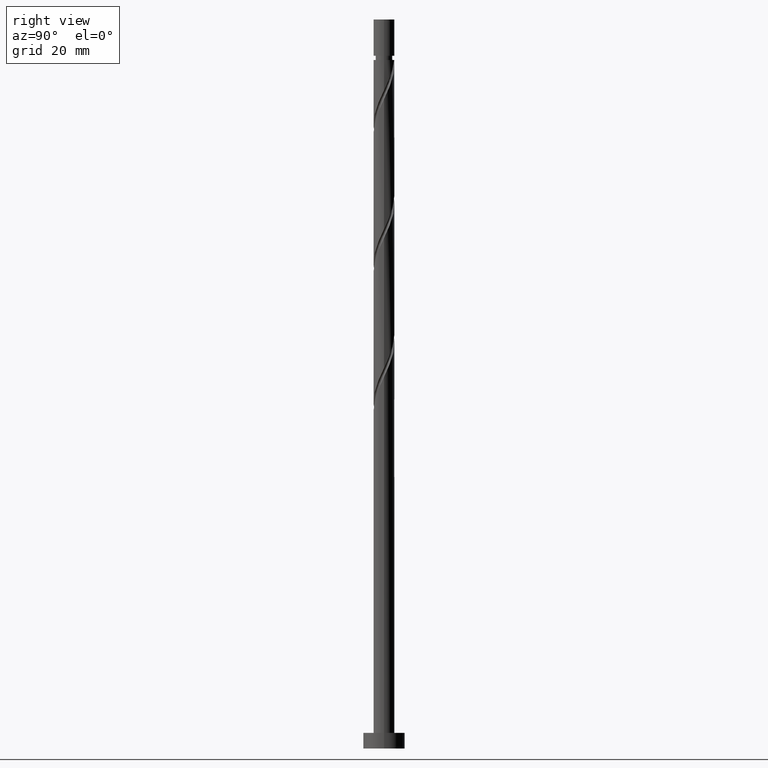
[diagram: clean part render]
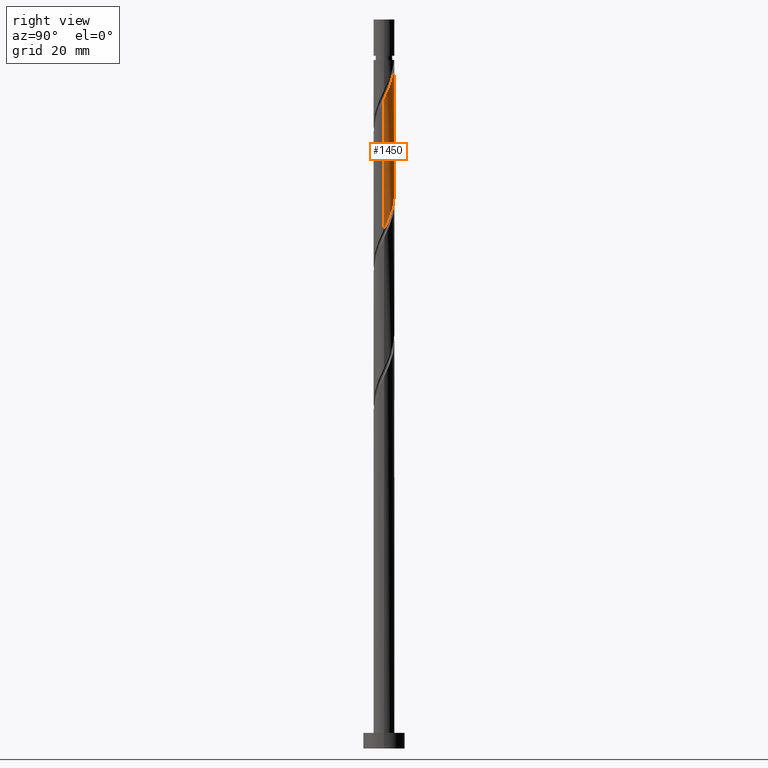
[diagram: same view with one face highlighted and labeled with its STEP entity id]
A machine part, right view. The second image highlights one B-rep face of the part: STEP entity #1450.
In plain terms, the highlighted cylindrical surface (edge-blend (fillet) strip) has radius 2 mm, axis along (-0, -0, -1).
Its self-contained STEP definition (entity closure, byte-faithful):
#6 = AXIS2_PLACEMENT_3D ( 'NONE', #868, #875, #1384 ) ;
#42 = CARTESIAN_POINT ( 'NONE',  ( 0.1161895186125009721, 2.017223038501448240, 106.1635115186231815 ) ) ;
#64 = CARTESIAN_POINT ( 'NONE',  ( 0.9340691933046023632, 1.768478086411954919, 104.3453297004413542 ) ) ;
#70 = CARTESIAN_POINT ( 'NONE',  ( 1.220637884402355322, 1.584311571365226046, 128.5877539428655894 ) ) ;
#72 = CARTESIAN_POINT ( 'NONE',  ( -1.220637884402353768, 1.584311571365224047, 109.1938145489261984 ) ) ;
#145 = CARTESIAN_POINT ( 'NONE',  ( -0.3979949748426484524, 1.960000000000001297, 132.2241175792291870 ) ) ;
#147 = EDGE_CURVE ( 'NONE', #593, #902, #765, .T. ) ;
#153 = DIRECTION ( 'NONE',  ( -1.000000000000000000, 0.000000000000000000, 0.000000000000000000 ) ) ;
#181 = CARTESIAN_POINT ( 'NONE',  ( 0.3979949748426491185, 1.960000000000000409, 105.5574509125625724 ) ) ;
#189 = CARTESIAN_POINT ( 'NONE',  ( 1.786663747202085206, 0.9436744384215546289, 126.7695721246837905 ) ) ;
#216 = VERTEX_POINT ( 'NONE', #572 ) ;
#221 = CARTESIAN_POINT ( 'NONE',  ( -2.000000000000000000, 0.000000000000000000, 140.0000000000000000 ) ) ;
#301 = ORIENTED_EDGE ( 'NONE', *, *, #1130, .F. ) ;
#314 = CARTESIAN_POINT ( 'NONE',  ( -1.448427499289741238, 1.408810338760220660, 109.7998751549867933 ) ) ;
#324 = CARTESIAN_POINT ( 'NONE',  ( 1.996690616564942733, 0.1150068768444769546, 124.9513903065019775 ) ) ;
#325 = CARTESIAN_POINT ( 'NONE',  ( 1.600603406160405084, 1.233189980288572851, 102.5271478822595554 ) ) ;
#338 = CARTESIAN_POINT ( 'NONE',  ( 0.9928482695149680737, 1.759812803970230322, 129.1938145489262411 ) ) ;
#362 = VECTOR ( 'NONE', #1219, 1000.000000000000000 ) ;
#393 = AXIS2_PLACEMENT_3D ( 'NONE', #790, #776, #153 ) ;
#413 = FACE_OUTER_BOUND ( 'NONE', #1280, .T. ) ;
#429 = CARTESIAN_POINT ( 'NONE',  ( -1.996690616564940512, 0.1150068768444774819, 112.8301781852898387 ) ) ;
#435 = ORIENTED_EDGE ( 'NONE', *, *, #147, .F. ) ;
#447 = CARTESIAN_POINT ( 'NONE',  ( -0.7248413235775359453, 1.864029252891264754, 107.9816933368049945 ) ) ;
#497 = CIRCLE ( 'NONE', #6, 1.999999999999996669 ) ;
#537 = CYLINDRICAL_SURFACE ( 'NONE', #393, 2.000000000000000000 ) ;
#567 = CARTESIAN_POINT ( 'NONE',  ( 1.448427499289744569, 1.408810338760221770, 127.9816933368050087 ) ) ;
#572 = CARTESIAN_POINT ( 'NONE',  ( 2.000000000000002665, -1.054455859596495612E-15, 124.7079964332616981 ) ) ;
#578 = CARTESIAN_POINT ( 'NONE',  ( 2.000000000000000888, 2.901623216478314900E-15, 99.74023872519683209 ) ) ;
#579 = CARTESIAN_POINT ( 'NONE',  ( 1.883197487972272377, 0.7322950311120127731, 101.3150266701383231 ) ) ;
#584 = CARTESIAN_POINT ( 'NONE',  ( 0.4568343776401061485, 1.968245701812304072, 130.4059357610474308 ) ) ;
#592 = CARTESIAN_POINT ( 'NONE',  ( 1.617545623245913999, 1.176242388590888144, 127.3756327307443854 ) ) ;
#593 = VERTEX_POINT ( 'NONE', #788 ) ;
#700 = CARTESIAN_POINT ( 'NONE',  ( -1.617545623245911779, 1.176242388590887478, 110.4059357610474308 ) ) ;
#711 = CARTESIAN_POINT ( 'NONE',  ( 0.6798004310727968624, 1.902776961498552133, 104.9513903065019917 ) ) ;
#724 = CARTESIAN_POINT ( 'NONE',  ( -1.999999999999996669, 0.000000000000000000, 132.2241175792292438 ) ) ;
#765 =( BOUNDED_CURVE ( )  B_SPLINE_CURVE ( 2, ( #1581, #841, #429, #1458, #1347, #1212, #700, #314, #72, #1449, #447, #1221, #938, #42, #181, #711, #64, #813, #1073, #325, #1326, #579, #824, #1337, #1468 ),
 .UNSPECIFIED., .F., .T. ) 
 B_SPLINE_CURVE_WITH_KNOTS ( ( 3, 2, 2, 2, 2, 2, 2, 2, 2, 2, 2, 2, 3 ),
 ( 0.4295252162417514952, 0.4318181818181818232, 0.4431818181818181768, 0.4545454545454545303, 0.4659090909090908839, 0.4772727272727272929, 0.4886363636363636465, 0.5000000000000000000, 0.5113636363636363535, 0.5227272727272727071, 0.5340909090909090606, 0.5454545454545454142, 0.5545252162417512176 ),
 .UNSPECIFIED. ) 
 CURVE ( )  GEOMETRIC_REPRESENTATION_ITEM ( )  RATIONAL_B_SPLINE_CURVE ( ( 0.9061101570135573491, 0.9072237824201394574, 0.9090909090909168322, 0.8998376744372191816, 0.9090909090909168322, 0.8998376744372191816, 0.9090909090909168322, 0.8998376744372191816, 0.9090909090909168322, 0.8998376744372191816, 0.9090909090909168322, 0.8998376744372191816, 0.9090909090909168322, 0.8998376744372191816, 0.9090909090909168322, 0.8998376744372191816, 0.9090909090909168322, 0.8998376744372191816, 0.9090909090909168322, 0.8998376744372191816, 0.9090909090909168322, 0.8998376744372191816, 0.9090909090909168322, 0.9017048011079967784, 0.9061101570135571270 ) ) 
 REPRESENTATION_ITEM ( '' )  );
#770 = ORIENTED_EDGE ( 'NONE', *, *, #1058, .F. ) ;
#776 = DIRECTION ( 'NONE',  ( -0.000000000000000000, -0.000000000000000000, -1.000000000000000000 ) ) ;
#788 = CARTESIAN_POINT ( 'NONE',  ( -2.000000000000000444, 2.288393567634959354E-15, 113.0735720585301181 ) ) ;
#790 = CARTESIAN_POINT ( 'NONE',  ( 0.000000000000000000, 0.000000000000000000, 140.0000000000000000 ) ) ;
#813 = CARTESIAN_POINT ( 'NONE',  ( 1.188337955536408419, 1.634179211325358372, 103.7392690943808020 ) ) ;
#822 = CARTESIAN_POINT ( 'NONE',  ( 1.980155124014553847, 0.4020876473299556109, 125.5574509125626150 ) ) ;
#824 = CARTESIAN_POINT ( 'NONE',  ( 1.948211798543800555, 0.4521844623765068349, 100.7089660640777140 ) ) ;
#839 = CARTESIAN_POINT ( 'NONE',  ( 2.000000000000003109, 0.05755105304764087520, 124.8300944379799091 ) ) ;
#841 = CARTESIAN_POINT ( 'NONE',  ( -2.000000000000000888, 0.05755105304764918800, 112.9514740538119213 ) ) ;
#847 = CARTESIAN_POINT ( 'NONE',  ( 2.000000000000002665, -1.054455859596495612E-15, 124.7079964332616981 ) ) ;
#868 = CARTESIAN_POINT ( 'NONE',  ( 0.000000000000000000, 0.000000000000000000, 132.2241175792292438 ) ) ;
#875 = DIRECTION ( 'NONE',  ( -0.000000000000000000, -0.000000000000000000, -1.000000000000000000 ) ) ;
#902 = VERTEX_POINT ( 'NONE', #578 ) ;
#938 = CARTESIAN_POINT ( 'NONE',  ( -0.1703224295138020539, 1.992734370156875157, 106.7695721246838190 ) ) ;
#975 =( BOUNDED_CURVE ( )  B_SPLINE_CURVE ( 2, ( #847, #839, #324, #822, #1228, #189, #592, #567, #70, #338, #1361, #584, #1081, #1346, #1099 ),
 .UNSPECIFIED., .F., .F. ) 
 B_SPLINE_CURVE_WITH_KNOTS ( ( 3, 2, 2, 2, 2, 2, 2, 3 ),
 ( 0.6795252162417512176, 0.6818181818181818787, 0.6931818181818181213, 0.7045454545454545858, 0.7159090909090908283, 0.7272727272727271819, 0.7386363636363635354, 0.7499999999999998890 ),
 .UNSPECIFIED. ) 
 CURVE ( )  GEOMETRIC_REPRESENTATION_ITEM ( )  RATIONAL_B_SPLINE_CURVE ( ( 0.9061101570135619010, 0.9072237824201440093, 0.9090909090909216062, 0.8998376744372238445, 0.9090909090909216062, 0.8998376744372238445, 0.9090909090909216062, 0.8998376744372238445, 0.9090909090909216062, 0.8998376744372238445, 0.9090909090909216062, 0.8998376744372238445, 0.9090909090909216062, 0.8998376744372239555, 0.9090909090909214951 ) ) 
 REPRESENTATION_ITEM ( '' )  );
#1007 = VERTEX_POINT ( 'NONE', #724 ) ;
#1035 = DIRECTION ( 'NONE',  ( -0.000000000000000000, -0.000000000000000000, -1.000000000000000000 ) ) ;
#1058 = EDGE_CURVE ( 'NONE', #1007, #593, #1482, .T. ) ;
#1065 = ORIENTED_EDGE ( 'NONE', *, *, #1570, .T. ) ;
#1073 = CARTESIAN_POINT ( 'NONE',  ( 1.394470680848406419, 1.433684595806965500, 103.1332084883201503 ) ) ;
#1081 = CARTESIAN_POINT ( 'NONE',  ( 0.1703224295138026645, 1.992734370156877377, 131.0119963671080257 ) ) ;
#1099 = CARTESIAN_POINT ( 'NONE',  ( -0.3979949748426484524, 1.960000000000001297, 132.2241175792291870 ) ) ;
#1130 = EDGE_CURVE ( 'NONE', #216, #1517, #975, .T. ) ;
#1212 = CARTESIAN_POINT ( 'NONE',  ( -1.786663747202082098, 0.9436744384215545178, 111.0119963671080399 ) ) ;
#1219 = DIRECTION ( 'NONE',  ( -0.000000000000000000, -0.000000000000000000, -1.000000000000000000 ) ) ;
#1221 = CARTESIAN_POINT ( 'NONE',  ( -0.4568343776401052603, 1.968245701812301407, 107.3756327307444138 ) ) ;
#1228 = CARTESIAN_POINT ( 'NONE',  ( 1.883409435608319082, 0.6728810428757550088, 126.1635115186231531 ) ) ;
#1280 = EDGE_LOOP ( 'NONE', ( #301, #1382, #435, #770, #1065 ) ) ;
#1326 = CARTESIAN_POINT ( 'NONE',  ( 1.741900447066338620, 0.9827425057002935338, 101.9210872761989464 ) ) ;
#1337 = CARTESIAN_POINT ( 'NONE',  ( 2.000000000000000444, 0.2290578547702464274, 100.2261986781681031 ) ) ;
#1339 = EDGE_CURVE ( 'NONE', #216, #902, #1421, .T. ) ;
#1346 = CARTESIAN_POINT ( 'NONE',  ( -0.1161895186124977386, 2.017223038501450905, 131.6180569731687058 ) ) ;
#1347 = CARTESIAN_POINT ( 'NONE',  ( -1.883409435608316418, 0.6728810428757550088, 111.6180569731686489 ) ) ;
#1361 = CARTESIAN_POINT ( 'NONE',  ( 0.7248413235775367225, 1.864029252891266975, 129.7998751549868359 ) ) ;
#1382 = ORIENTED_EDGE ( 'NONE', *, *, #1339, .T. ) ;
#1384 = DIRECTION ( 'NONE',  ( -1.000000000000000000, 0.000000000000000000, 0.000000000000000000 ) ) ;
#1421 = LINE ( 'NONE', #1434, #1616 ) ;
#1434 = CARTESIAN_POINT ( 'NONE',  ( 2.000000000000000000, 2.449293598294706414E-16, 140.0000000000000000 ) ) ;
#1449 = CARTESIAN_POINT ( 'NONE',  ( -0.9928482695149671855, 1.759812803970228989, 108.5877539428656320 ) ) ;
#1450 = ADVANCED_FACE ( 'NONE', ( #413 ), #537, .T. ) ;
#1458 = CARTESIAN_POINT ( 'NONE',  ( -1.980155124014551626, 0.4020876473299558329, 112.2241175792292438 ) ) ;
#1468 = CARTESIAN_POINT ( 'NONE',  ( 2.000000000000000888, 2.901623216478314900E-15, 99.74023872519683209 ) ) ;
#1482 = LINE ( 'NONE', #221, #362 ) ;
#1517 = VERTEX_POINT ( 'NONE', #145 ) ;
#1570 = EDGE_CURVE ( 'NONE', #1007, #1517, #497, .T. ) ;
#1581 = CARTESIAN_POINT ( 'NONE',  ( -2.000000000000000444, 2.288393567634959354E-15, 113.0735720585301181 ) ) ;
#1616 = VECTOR ( 'NONE', #1035, 1000.000000000000000 ) ;